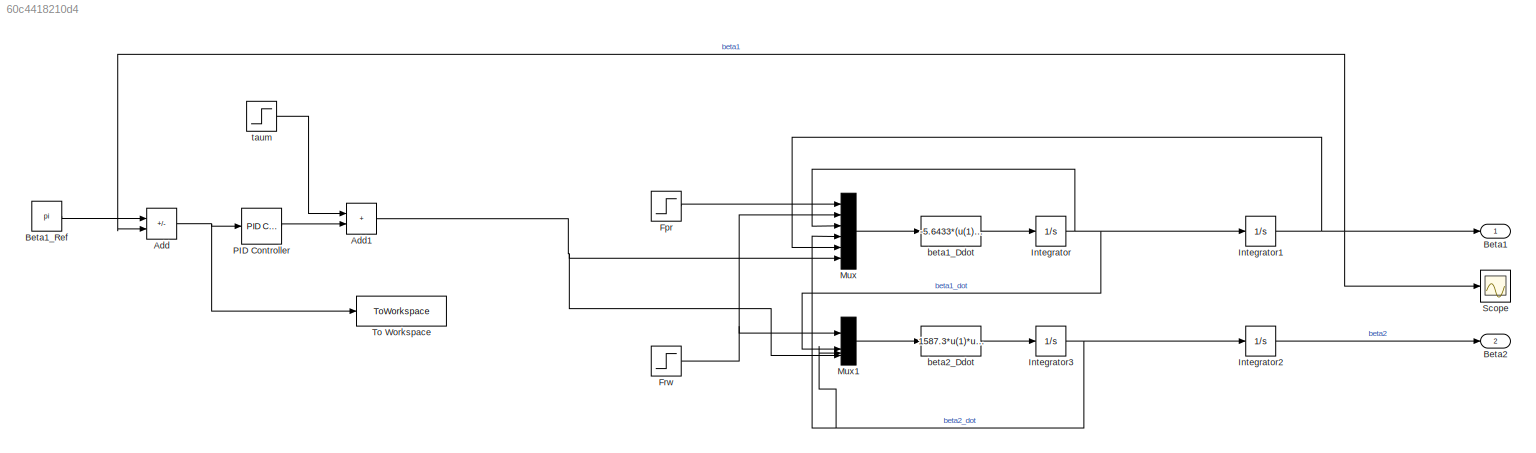
MODEL slx_60c4418210d4
KIND model
CONFIG AbsTol = auto
CONFIG EnableMultiTasking = off
CONFIG FixedStep = auto
CONFIG MaxStep = auto
CONFIG MinStep = auto
CONFIG RelTol = 1e-3
CONFIG SampleTimeConstraint = Unconstrained
CONFIG SolverName = VariableStepAuto
CONFIG StartTime = 0.0
CONFIG StopTime = 10
BLOCK [Sum] Add
  IconShape = rectangular
  Inputs = +-
BLOCK [Sum] Add1
  IconShape = rectangular
BLOCK [Outport] Beta1
BLOCK [Constant] Beta1_Ref
  Value = pi
BLOCK [Outport] Beta2
  Port = 2
BLOCK [Step] Fpr
  After = 0
  Before = 1
  SampleTime = 0.3
BLOCK [Step] Frw
  After = 0
  Before = 1
  SampleTime = 0.3
BLOCK [Integrator] Integrator
  ContinuousStateAttributes = "beta1_dot"
  LimitOutput = on
  LowerSaturationLimit = -pi/2
  UpperSaturationLimit = pi/2
BLOCK [Integrator] Integrator1
  ContinuousStateAttributes = "beta1"
  LimitOutput = on
  LowerSaturationLimit = -pi/2
  UpperSaturationLimit = pi/2
BLOCK [Integrator] Integrator2
  ContinuousStateAttributes = "beta2"
  LimitOutput = on
  LowerSaturationLimit = 0
  UpperSaturationLimit = 2*pi
BLOCK [Integrator] Integrator3
  ContinuousStateAttributes = "beta2_dot"
  LimitOutput = on
  LowerSaturationLimit = 0
  UpperSaturationLimit = 2*pi
BLOCK [Mux] Mux
  DisplayOption = bar
  Inputs = 6
BLOCK [Mux] Mux1
  DisplayOption = bar
BLOCK [Reference] PID Controller  REF=slpidlib/PID Controller
  LibrarySourceBlock = simulink/Continuous/PID Controller
  SourceBlock = slpidlib/PID Controller
  SourceType = PID 1dof
BLOCK [Scope] Scope
  Floating = off
  NumInputPorts = 1
  ScopeSpecificationString = Simulink.scopes.TimeScopeBlockCfg('CurrentConfiguration', extmgr.ConfigurationSet(extmgr.Configuration('Core','General UI',true),extmgr.Configuration('Core','Source UI',true),extmgr.Configuration('Sources','WiredSimulink',true,'SampleTime','0.3'),extmgr.Configuration('Visuals','Time Domain',true,'SerializedDisplays',{struct('MinYLimReal','-21','MaxYLimReal','15','YLabelReal','','MinYLimMag','0.000...<+1567ch>
BLOCK [ToWorkspace] To Workspace
  FixptAsFi = on
  MaxDataPoints = inf
  SampleTime = -1
  VariableName = roll_error
BLOCK [Fcn] beta1_Ddot
  Expr = -5.6433*(u(1)+u(2))*u(3) + 5.6433*u(4) - 94.7754*u(5) -5.6433*u(6)
BLOCK [Fcn] beta2_Ddot
  Expr = 1587.3*u(1)*u(2) - 1587.3*u(1)*u(3) + 1587.3*u(4)
BLOCK [Step] taum
  SampleTime = 0
NET Add1:1 -> Mux1:4, Mux:6
NET Add:1 -> PID Controller:1, To Workspace:1
LINE Beta1_Ref:1 -> Add:1
LINE Fpr:1 -> Mux:1
NET Frw:1 -> Mux1:1, Mux:2
NET Integrator1:1 -> Add:2, Beta1:1, Mux:5, Scope:1
LINE Integrator2:1 -> Beta2:1
NET Integrator3:1 -> Integrator2:1, Mux1:3, Mux:4
NET Integrator:1 -> Integrator1:1, Mux1:2, Mux:3
LINE Mux1:1 -> beta2_Ddot:1
LINE Mux:1 -> beta1_Ddot:1
LINE PID Controller:1 -> Add1:2
LINE beta1_Ddot:1 -> Integrator:1
LINE beta2_Ddot:1 -> Integrator3:1
LINE taum:1 -> Add1:1
note: NET lines group one-source signal fan-out (src -> all destinations, sorted); 1:1 wires keep LINE
